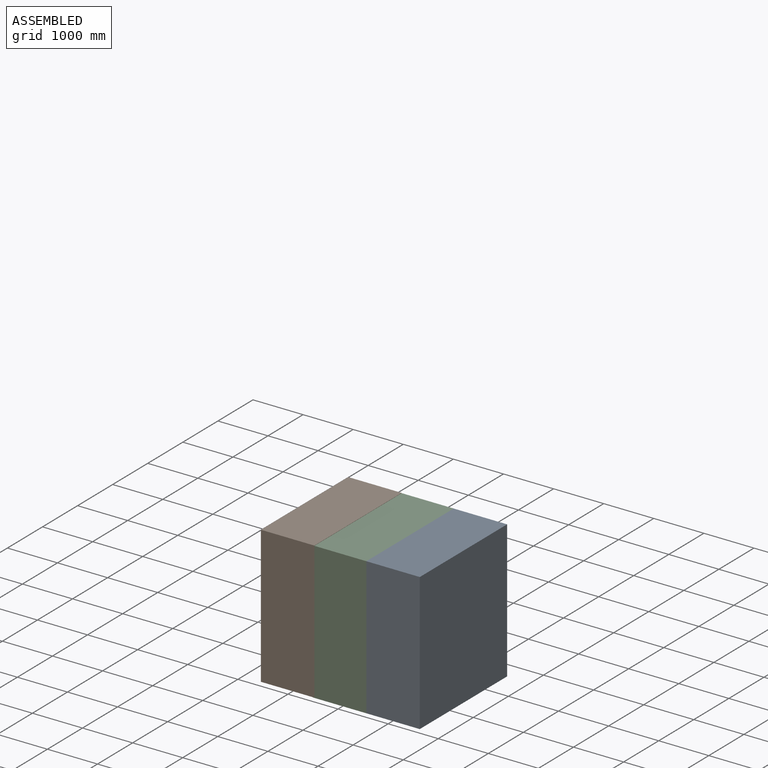
[diagram: assembled view]
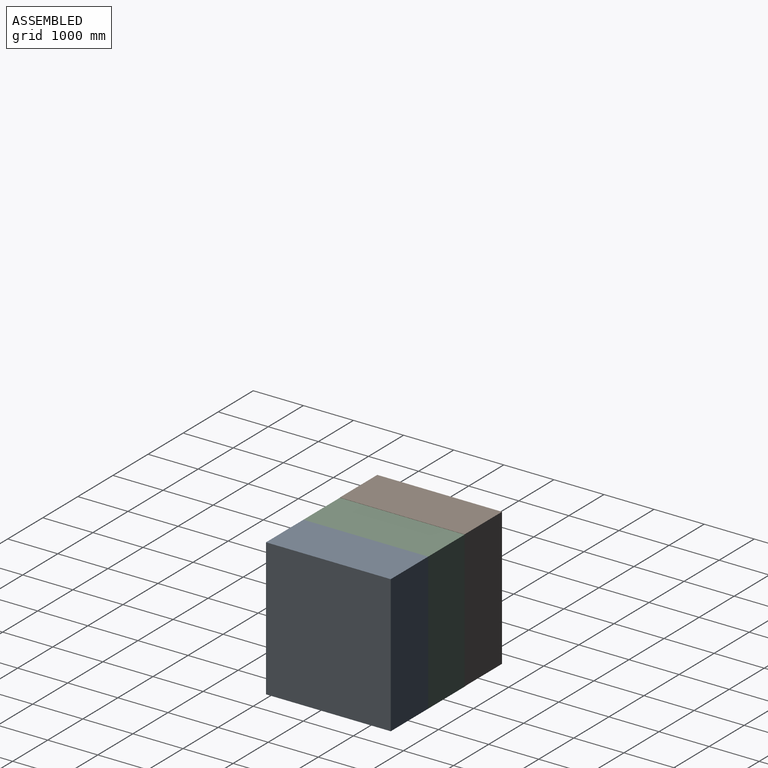
[diagram: assembled view, second angle]
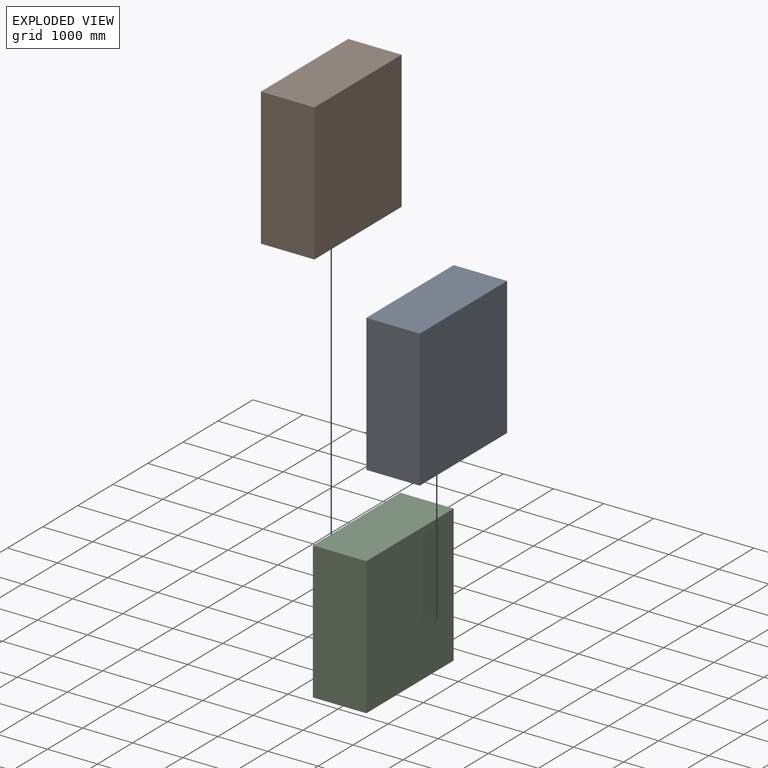
[diagram: exploded view]
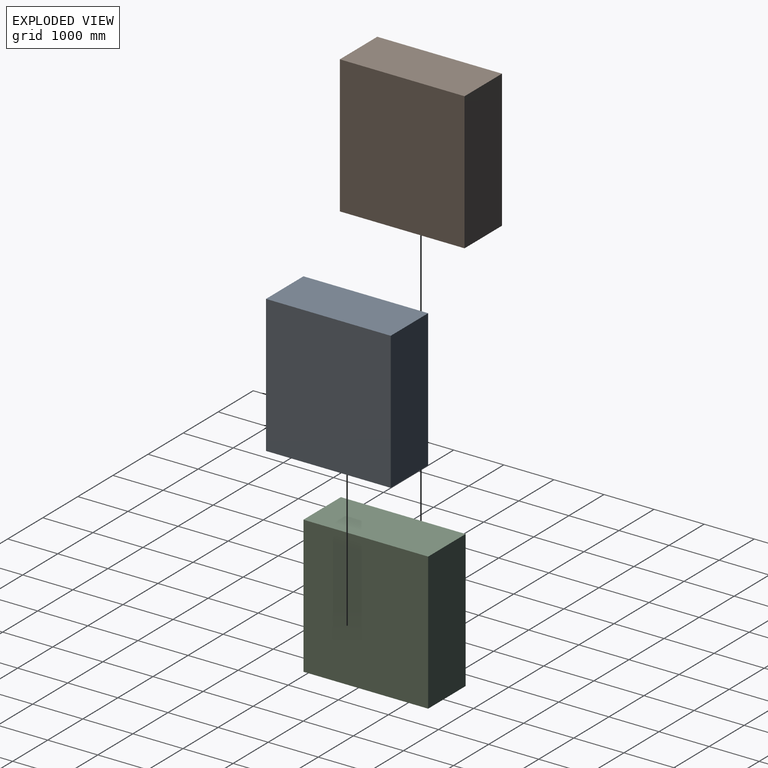
[diagram: exploded view, second angle]
ASSEMBLY  parts=3 mates=2
PART A: 6 faces, bbox 1066.8x2489.2x2743.2 mm
  f0: plane 2489.2x1066.8mm, normal (0,0,1), area 2655478.6mm2, adj f1,f3,f4,f5
  f1: plane 2743.2x2489.2mm, normal (-1,0,0), area 6828373.4mm2, adj f0,f2,f4,f5
  f2: plane 2489.2x1066.8mm, normal (0,0,-1), area 2655478.6mm2, adj f1,f3,f4,f5
  f3: plane 2743.2x2489.2mm, normal (1,0,0), area 6828373.4mm2, adj f0,f2,f4,f5
  f4: plane 2743.2x1066.8mm, normal (0,1,0), area 2926445.8mm2, adj f0,f1,f2,f3
  f5: plane 2743.2x1066.8mm, normal (0,-1,0), area 2926445.8mm2, adj f0,f1,f2,f3
PART B: same geometry as A
PART C: same geometry as A
PLACE A t=(2104.45,0,-4.86)mm
PLACE B at identity
PLACE C t=(1037.65,0,-4.86)mm
MATE parallel C.f0 <-> B.f0  axis (0,0,1) through (498.33,0,1873.67)mm
MATE parallel A.f0 <-> C.f0  axis (0,0,1) through (1565.13,0,1873.67)mm
